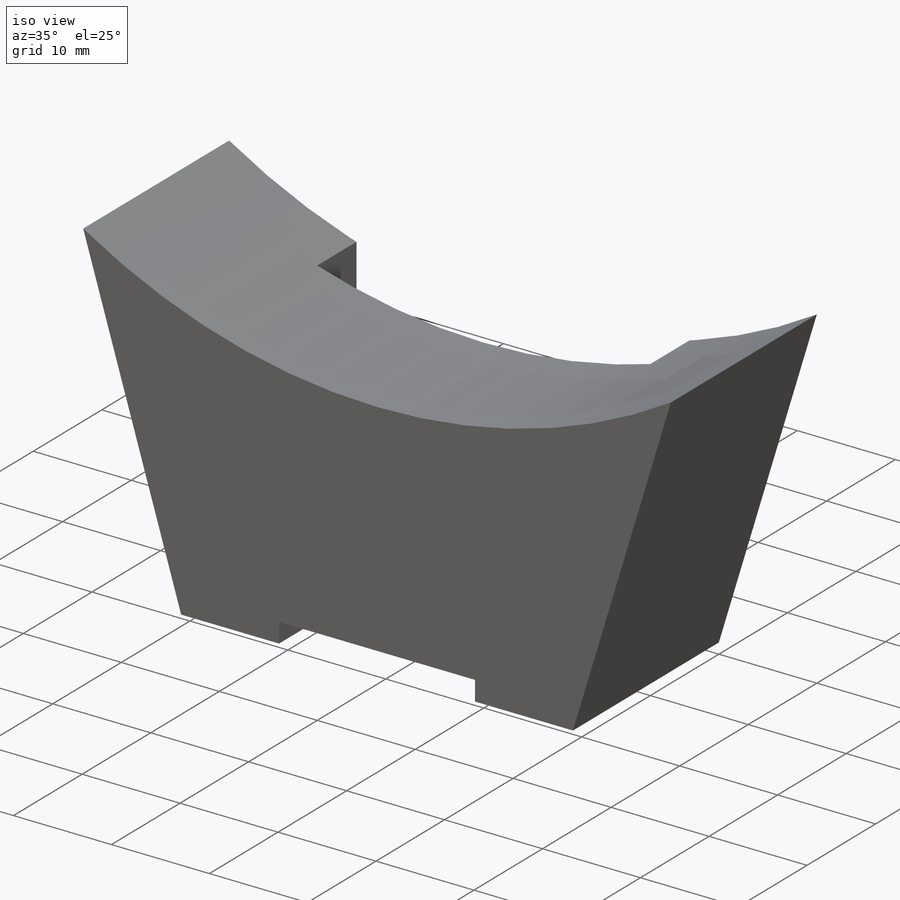
[diagram: iso view]
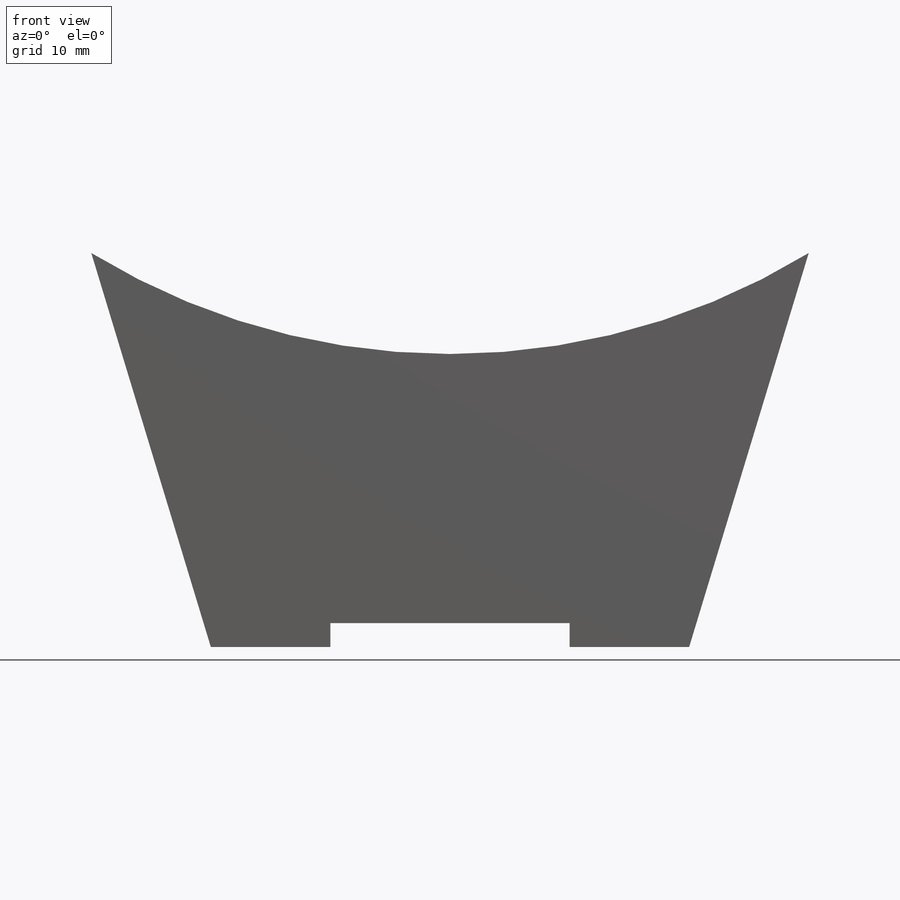
[diagram: front view]
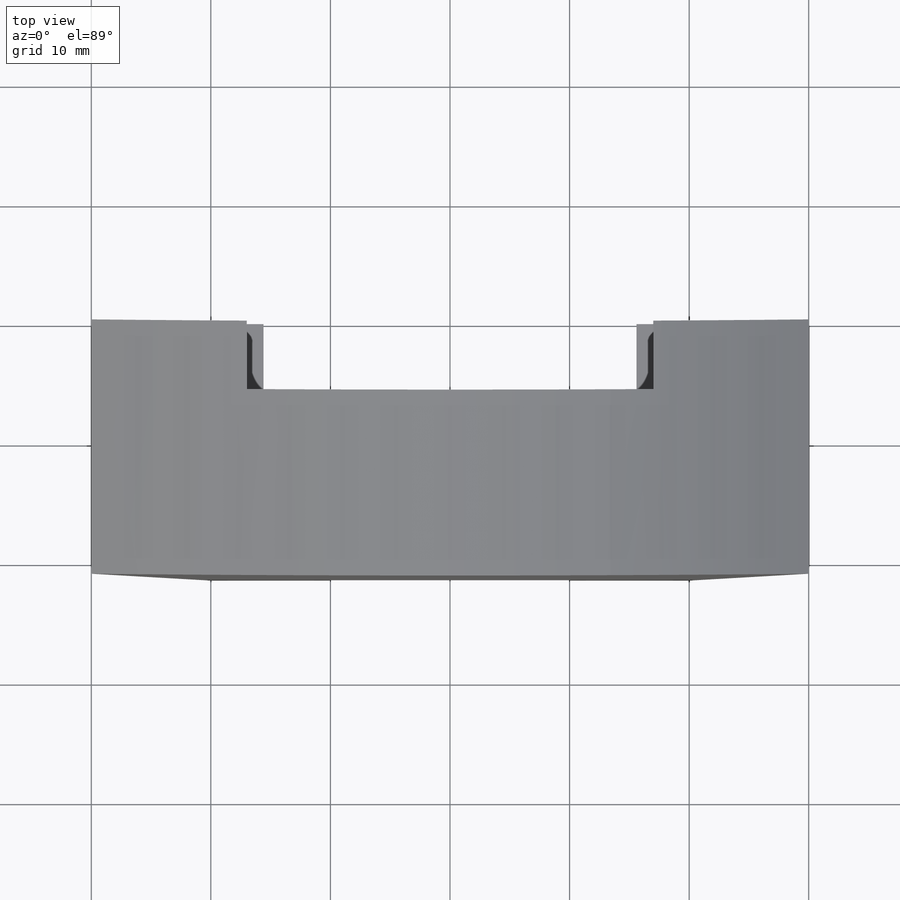
[diagram: top view]
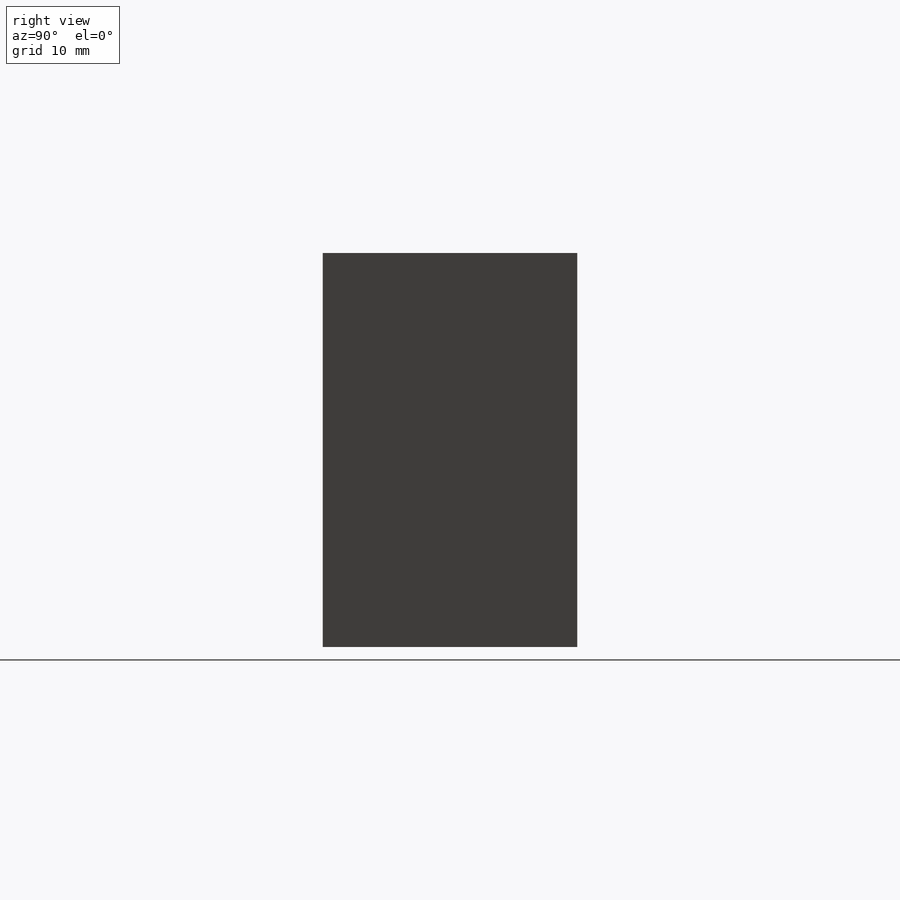
[diagram: right view]
SOLIDWORKS PART (.sldprt)
format: sldprt  version: not decoded by parser v0  size: 292,864 bytes
history: native  units: mm
features: sketch x8, extrude x4, cut_extrude x4, plane x3, material x1 (+9 scaffold rows collapsed)
feature tree (29):
  scaffold x9  (default folders/planes/origin — collapsed)
  material  "Matériau <non spécifié>"
  plane  "Plan de face"
  plane  "Plan de dessus"
  plane  "Plan de droite"
  sketch  "Esquisse1"  dims[D1=0.2mm D2=0.2mm D3=1.0mm D4=40.0mm D5=20.0mm]
  extrude  "Boss.-Extru.1"  [1 undecoded]
  sketch  "Esquisse2"  dims[D1=22.0mm]
  extrude  "Boss.-Extru.2"  Depth=3mm
  sketch  "Esquisse3"
  extrude  "Boss.-Extru.3"  Depth=2mm
  sketch  "Esquisse4"  dims[D1=20.0mm]
  cut_extrude  "Enlèv. mat.-Extru.2"  [1 undecoded]
  sketch  "Esquisse5"
  cut_extrude  "Enlèv. mat.-Extru.3"  [1 undecoded]
  sketch  "Esquisse6"  dims[D1=34.0mm]
  cut_extrude  "Enlèv. mat.-Extru.4"  [1 undecoded]
  sketch  "Esquisse7"  dims[D1=60.0mm D2=2.0mm]
  extrude  "Boss.-Extru.4"  [1 undecoded]
  sketch  "Esquisse8"  dims[D1=0.0mm]
  cut_extrude  "Enlèv. mat.-Extru.5"  [1 undecoded]
decode coverage: 8 of 16 modeling features carry decoded parameters
note: 6 parameter values undecoded
summary: no parameter record found for 6 features
note: suppression state not decoded; provenance and decode notes live in map.json
